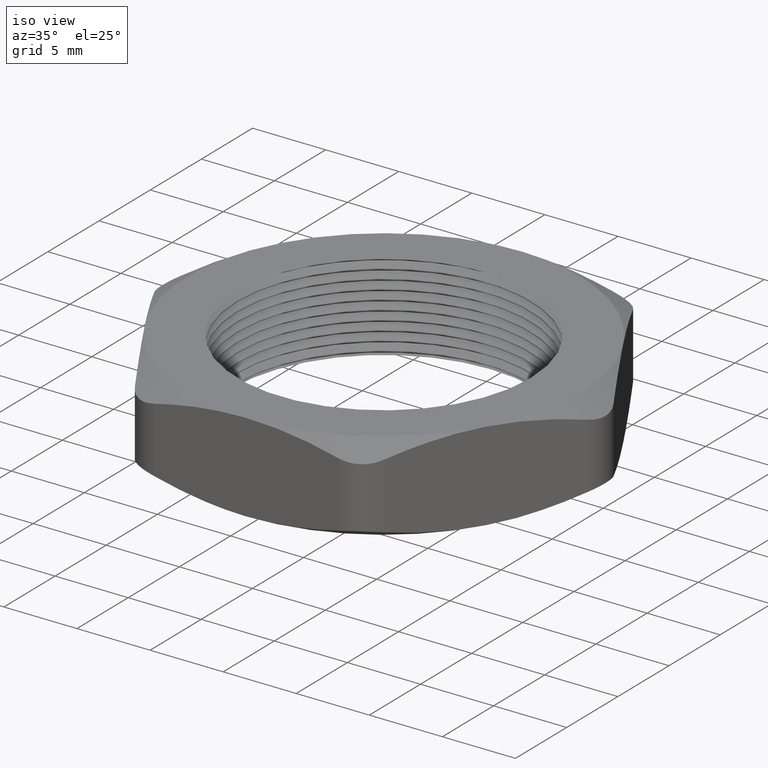
[diagram: clean part render]
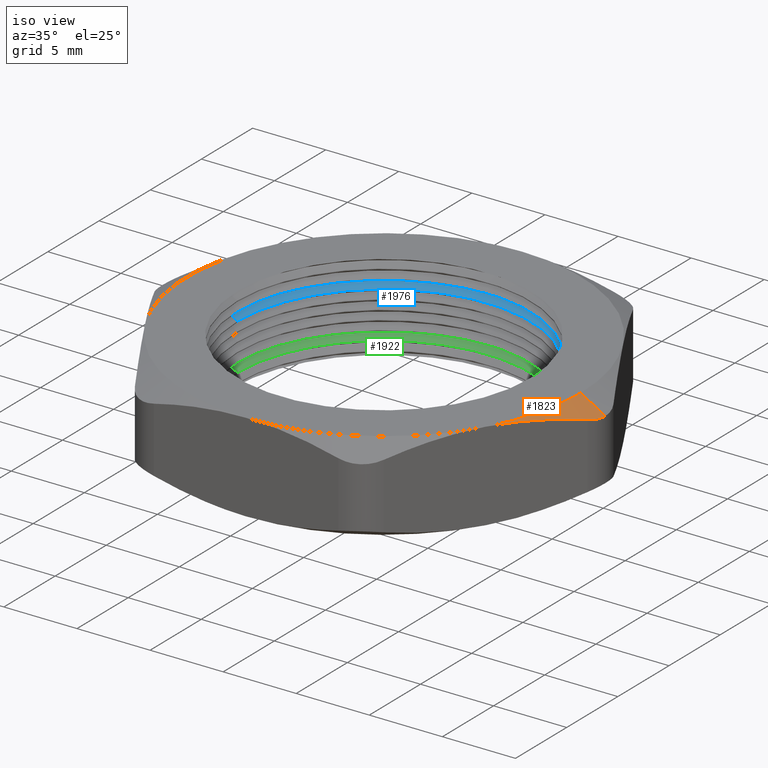
[diagram: same view with three faces highlighted in distinct colors, each labeled with its STEP entity id]
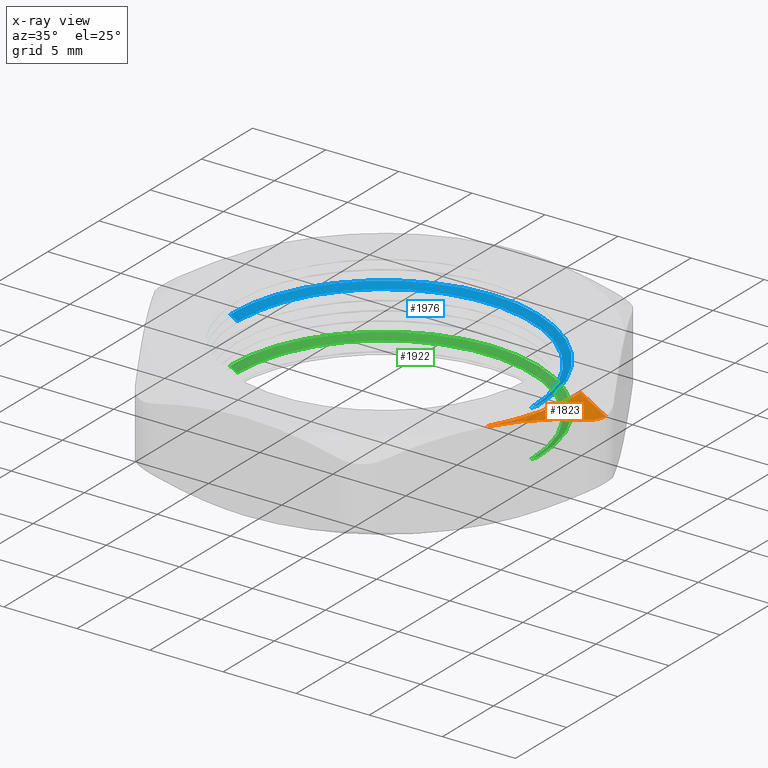
[diagram: x-ray of the same camera — body ghosted, the three highlighted faces saturated]
A machine part, iso view with three faces highlighted in distinct colors.
The next image is the same camera in x-ray (body ghosted, the three faces saturated) — at least one of them is partly hidden behind the body in this view.
Their STEP definitions:

[orange] entity #1823 — the highlighted conical surface has half-angle 60 deg.
#121 = CARTESIAN_POINT ( 'NONE',  ( 0.5965212315030782300, -3.403593173353176800E-025, 0.2015939490848726600 ) ) ;
#122 = DIRECTION ( 'NONE',  ( 0.8660254037844397100, 0.0000000000000000000, -0.4999999999999979500 ) ) ;
#123 = VECTOR ( 'NONE', #122, 39.37007874015748900 ) ;
#124 = CARTESIAN_POINT ( 'NONE',  ( 0.5300000000000001400, 0.0000000000000000000, 0.2399999999999999900 ) ) ;
#125 = LINE ( 'NONE', #124, #123 ) ;
#127 = CARTESIAN_POINT ( 'NONE',  ( 0.5300000000000001400, 0.0000000000000000000, 0.2399999999999999900 ) ) ;
#451 = CARTESIAN_POINT ( 'NONE',  ( 0.5831237718815220900, -0.04999999999999973200, 0.2080936187378568900 ) ) ;
#452 = CARTESIAN_POINT ( 'NONE',  ( 0.5628122693413814000, -0.08518055437758737000, 0.2180423529276612800 ) ) ;
#453 = CARTESIAN_POINT ( 'NONE',  ( 0.5423412265098264100, -0.1206374406457594400, 0.2260647668561308100 ) ) ;
#454 = CARTESIAN_POINT ( 'NONE',  ( 0.5113207380161618500, -0.1743665027923923800, 0.2343080058279308200 ) ) ;
#455 = CARTESIAN_POINT ( 'NONE',  ( 0.5009282709238904700, -0.1923667838121938300, 0.2364242204120070600 ) ) ;
#456 = CARTESIAN_POINT ( 'NONE',  ( 0.4800286126102081300, -0.2285660538723209800, 0.2392714483092691600 ) ) ;
#457 = CARTESIAN_POINT ( 'NONE',  ( 0.4694840780328565800, -0.2468297235024607400, 0.2400000000000003800 ) ) ;
#458 = CARTESIAN_POINT ( 'NONE',  ( 0.4589934640057524700, -0.2649999999999999600, 0.2399999999999999900 ) ) ;
#459 = CARTESIAN_POINT ( 'NONE',  ( 0.4589934640057524700, -0.2649999999999999600, 0.2399999999999999900 ) ) ;
#460 = B_SPLINE_CURVE_WITH_KNOTS ( 'NONE', 3,
 ( #458, #457, #456, #455, #454, #453, #452, #451 ),
 .UNSPECIFIED., .F., .F.,
 ( 4, 2, 2, 4 ),
 ( 0.007864521838742756900, 0.009447047830300869800, 0.01102957382185898100, 0.01419462580497520700 ),
 .UNSPECIFIED. ) ;
#461 = CARTESIAN_POINT ( 'NONE',  ( 0.5831237718815220900, -0.04999999999999973200, 0.2080936187378568900 ) ) ;
#856 = CARTESIAN_POINT ( 'NONE',  ( 0.5874461532471804100, -0.04251341586499040500, 0.2059764822439457400 ) ) ;
#857 = CARTESIAN_POINT ( 'NONE',  ( 0.5831237718815220900, -0.04999999999999973200, 0.2080936187378568900 ) ) ;
#869 = B_SPLINE_CURVE_WITH_KNOTS ( 'NONE', 3,
 ( #857, #856, #904, #903, #902, #901 ),
 .UNSPECIFIED., .F., .F.,
 ( 4, 2, 4 ),
 ( 2.168404344971008900E-019, 0.0006690574479773465400, 0.001338114895954692900 ),
 .UNSPECIFIED. ) ;
#882 = DIRECTION ( 'NONE',  ( 1.000000000000000000, 0.0000000000000000000, 0.0000000000000000000 ) ) ;
#883 = DIRECTION ( 'NONE',  ( 0.0000000000000000000, 0.0000000000000000000, 1.000000000000000000 ) ) ;
#884 = CARTESIAN_POINT ( 'NONE',  ( 0.0000000000000000000, 0.0000000000000000000, 0.2399999999999999900 ) ) ;
#885 = AXIS2_PLACEMENT_3D ( 'NONE', #884, #883, #882 ) ;
#886 = CIRCLE ( 'NONE', #885, 0.5300000000000001400 ) ;
#901 = CARTESIAN_POINT ( 'NONE',  ( 0.5965212315030782300, -3.403593173353176800E-025, 0.2015939490848726600 ) ) ;
#902 = CARTESIAN_POINT ( 'NONE',  ( 0.5965212315030781200, -0.008792523700346100600, 0.2015939490848726600 ) ) ;
#903 = CARTESIAN_POINT ( 'NONE',  ( 0.5953478593261328800, -0.01761277402300891900, 0.2021565181018570600 ) ) ;
#904 = CARTESIAN_POINT ( 'NONE',  ( 0.5907735808882251800, -0.03454572058942138900, 0.2043654439536534400 ) ) ;
#962 = DIRECTION ( 'NONE',  ( 1.000000000000000000, 0.0000000000000000000, 0.0000000000000000000 ) ) ;
#963 = DIRECTION ( 'NONE',  ( 0.0000000000000000000, 0.0000000000000000000, -1.000000000000000000 ) ) ;
#964 = CARTESIAN_POINT ( 'NONE',  ( 0.0000000000000000000, 0.0000000000000000000, 0.2399999999999999900 ) ) ;
#965 = AXIS2_PLACEMENT_3D ( 'NONE', #964, #963, #962 ) ;
#967 = CONICAL_SURFACE ( 'NONE', #965, 0.5300000000000001400, 1.047197551196600100 ) ;
#970 = FACE_OUTER_BOUND ( 'NONE', #1824, .T. ) ;
#1783 = ORIENTED_EDGE ( 'NONE', *, *, #2456, .T. ) ;
#1784 = ORIENTED_EDGE ( 'NONE', *, *, #1785, .T. ) ;
#1785 = EDGE_CURVE ( 'NONE', #2454, #2281, #869, .T. ) ;
#1796 = EDGE_CURVE ( 'NONE', #2457, #2277, #886, .T. ) ;
#1823 = ADVANCED_FACE ( 'NONE', ( #970 ), #967, .T. ) ;
#1824 = EDGE_LOOP ( 'NONE', ( #1825, #1826, #1783, #1784 ) ) ;
#1825 = ORIENTED_EDGE ( 'NONE', *, *, #2280, .F. ) ;
#1826 = ORIENTED_EDGE ( 'NONE', *, *, #1796, .F. ) ;
#2277 = VERTEX_POINT ( 'NONE', #127 ) ;
#2280 = EDGE_CURVE ( 'NONE', #2277, #2281, #125, .T. ) ;
#2281 = VERTEX_POINT ( 'NONE', #121 ) ;
#2454 = VERTEX_POINT ( 'NONE', #461 ) ;
#2456 = EDGE_CURVE ( 'NONE', #2457, #2454, #460, .T. ) ;
#2457 = VERTEX_POINT ( 'NONE', #459 ) ;

[blue] entity #1976 — the highlighted conical surface has half-angle 60 deg.
#166 = DIRECTION ( 'NONE',  ( 1.000000000000000000, 0.0000000000000000000, 0.0000000000000000000 ) ) ;
#167 = DIRECTION ( 'NONE',  ( 0.0000000000000000000, 0.0000000000000000000, 1.000000000000000000 ) ) ;
#168 = AXIS2_PLACEMENT_3D ( 'NONE', #175, #167, #166 ) ;
#169 = CIRCLE ( 'NONE', #168, 0.3950000000000000200 ) ;
#175 = CARTESIAN_POINT ( 'NONE',  ( 0.0000000000000000000, 0.0000000000000000000, 0.1669059892324150900 ) ) ;
#1362 = DIRECTION ( 'NONE',  ( 1.000000000000000000, 0.0000000000000000000, 0.0000000000000000000 ) ) ;
#1363 = DIRECTION ( 'NONE',  ( 0.0000000000000000000, 0.0000000000000000000, 1.000000000000000000 ) ) ;
#1364 = AXIS2_PLACEMENT_3D ( 'NONE', #1367, #1363, #1362 ) ;
#1365 = CONICAL_SURFACE ( 'NONE', #1364, 0.3950000000000000200, 1.047197551196591000 ) ;
#1367 = CARTESIAN_POINT ( 'NONE',  ( 0.0000000000000000000, 0.0000000000000000000, 0.1669059892324150900 ) ) ;
#1368 = DIRECTION ( 'NONE',  ( 1.000000000000000000, 0.0000000000000000000, 0.0000000000000000000 ) ) ;
#1369 = DIRECTION ( 'NONE',  ( 0.0000000000000000000, 0.0000000000000000000, 1.000000000000000000 ) ) ;
#1370 = CARTESIAN_POINT ( 'NONE',  ( 0.0000000000000000000, 0.0000000000000000000, 0.1784529946162077800 ) ) ;
#1371 = AXIS2_PLACEMENT_3D ( 'NONE', #1370, #1369, #1368 ) ;
#1372 = CIRCLE ( 'NONE', #1371, 0.4150000000000000400 ) ;
#1373 = FACE_OUTER_BOUND ( 'NONE', #1909, .T. ) ;
#1511 = DIRECTION ( 'NONE',  ( -0.8660254037844351500, 1.060575238724902700E-016, 0.5000000000000058800 ) ) ;
#1512 = VECTOR ( 'NONE', #1511, 39.37007874015748100 ) ;
#1513 = CARTESIAN_POINT ( 'NONE',  ( -0.3950000000000000200, 4.837354856632045600E-017, 0.1669059892324150900 ) ) ;
#1514 = LINE ( 'NONE', #1513, #1512 ) ;
#1515 = CARTESIAN_POINT ( 'NONE',  ( 0.3950000000000000200, 4.837354856632044300E-017, 0.1669059892324150900 ) ) ;
#1516 = CARTESIAN_POINT ( 'NONE',  ( -0.3950000000000000200, 0.0000000000000000000, 0.1669059892324150900 ) ) ;
#1651 = DIRECTION ( 'NONE',  ( 0.8660254037844351500, 0.0000000000000000000, 0.5000000000000058800 ) ) ;
#1652 = VECTOR ( 'NONE', #1651, 39.37007874015748100 ) ;
#1661 = CARTESIAN_POINT ( 'NONE',  ( 0.3950000000000000200, 0.0000000000000000000, 0.1669059892324150900 ) ) ;
#1662 = LINE ( 'NONE', #1661, #1652 ) ;
#1666 = CARTESIAN_POINT ( 'NONE',  ( -0.4150000000000000400, 0.0000000000000000000, 0.1784529946162077800 ) ) ;
#1667 = CARTESIAN_POINT ( 'NONE',  ( 0.4150000000000000400, 5.082284216461516300E-017, 0.1784529946162077800 ) ) ;
#1866 = ORIENTED_EDGE ( 'NONE', *, *, #1974, .T. ) ;
#1909 = EDGE_LOOP ( 'NONE', ( #1977, #1947, #1979, #1866 ) ) ;
#1947 = ORIENTED_EDGE ( 'NONE', *, *, #2319, .F. ) ;
#1974 = EDGE_CURVE ( 'NONE', #2175, #2172, #1372, .T. ) ;
#1976 = ADVANCED_FACE ( 'NONE', ( #1373 ), #1365, .F. ) ;
#1977 = ORIENTED_EDGE ( 'NONE', *, *, #2171, .F. ) ;
#1979 = ORIENTED_EDGE ( 'NONE', *, *, #2183, .T. ) ;
#2168 = VERTEX_POINT ( 'NONE', #1516 ) ;
#2169 = VERTEX_POINT ( 'NONE', #1515 ) ;
#2171 = EDGE_CURVE ( 'NONE', #2168, #2172, #1514, .T. ) ;
#2172 = VERTEX_POINT ( 'NONE', #1666 ) ;
#2175 = VERTEX_POINT ( 'NONE', #1667 ) ;
#2183 = EDGE_CURVE ( 'NONE', #2169, #2175, #1662, .T. ) ;
#2319 = EDGE_CURVE ( 'NONE', #2169, #2168, #169, .T. ) ;

[green] entity #1922 — the highlighted conical surface has half-angle 60 deg.
#244 = DIRECTION ( 'NONE',  ( 1.000000000000000000, 0.0000000000000000000, 0.0000000000000000000 ) ) ;
#245 = DIRECTION ( 'NONE',  ( 0.0000000000000000000, 0.0000000000000000000, 1.000000000000000000 ) ) ;
#246 = CARTESIAN_POINT ( 'NONE',  ( 0.0000000000000000000, 0.0000000000000000000, 0.04190598923241509200 ) ) ;
#247 = AXIS2_PLACEMENT_3D ( 'NONE', #246, #245, #244 ) ;
#248 = CIRCLE ( 'NONE', #247, 0.3950000000000000200 ) ;
#1064 = DIRECTION ( 'NONE',  ( 1.000000000000000000, 0.0000000000000000000, 0.0000000000000000000 ) ) ;
#1065 = DIRECTION ( 'NONE',  ( 0.0000000000000000000, 0.0000000000000000000, 1.000000000000000000 ) ) ;
#1066 = CARTESIAN_POINT ( 'NONE',  ( 0.0000000000000000000, 0.0000000000000000000, 0.04190598923241509200 ) ) ;
#1067 = AXIS2_PLACEMENT_3D ( 'NONE', #1066, #1065, #1064 ) ;
#1069 = CONICAL_SURFACE ( 'NONE', #1067, 0.3950000000000000200, 1.047197551196591000 ) ;
#1070 = FACE_OUTER_BOUND ( 'NONE', #1926, .T. ) ;
#1071 = DIRECTION ( 'NONE',  ( 1.000000000000000000, 0.0000000000000000000, 0.0000000000000000000 ) ) ;
#1072 = DIRECTION ( 'NONE',  ( 0.0000000000000000000, 0.0000000000000000000, 1.000000000000000000 ) ) ;
#1188 = CARTESIAN_POINT ( 'NONE',  ( 0.0000000000000000000, 0.0000000000000000000, 0.05345299461620777600 ) ) ;
#1189 = AXIS2_PLACEMENT_3D ( 'NONE', #1188, #1072, #1071 ) ;
#1194 = CIRCLE ( 'NONE', #1189, 0.4150000000000000400 ) ;
#1291 = CARTESIAN_POINT ( 'NONE',  ( 0.4150000000000000400, 5.082284216461516300E-017, 0.05345299461620777600 ) ) ;
#1301 = DIRECTION ( 'NONE',  ( 0.8660254037844351500, 0.0000000000000000000, 0.5000000000000058800 ) ) ;
#1302 = VECTOR ( 'NONE', #1301, 39.37007874015748100 ) ;
#1303 = CARTESIAN_POINT ( 'NONE',  ( 0.3950000000000000200, 0.0000000000000000000, 0.04190598923241509200 ) ) ;
#1304 = LINE ( 'NONE', #1303, #1302 ) ;
#1509 = CARTESIAN_POINT ( 'NONE',  ( -0.4150000000000000400, 0.0000000000000000000, 0.05345299461620777600 ) ) ;
#1599 = CARTESIAN_POINT ( 'NONE',  ( -0.3950000000000000200, 0.0000000000000000000, 0.04190598923241509200 ) ) ;
#1621 = CARTESIAN_POINT ( 'NONE',  ( 0.3950000000000000200, 4.837354856632044300E-017, 0.04190598923241509200 ) ) ;
#1888 = ORIENTED_EDGE ( 'NONE', *, *, #2224, .F. ) ;
#1921 = EDGE_CURVE ( 'NONE', #1949, #2090, #1194, .T. ) ;
#1922 = ADVANCED_FACE ( 'NONE', ( #1070 ), #1069, .F. ) ;
#1926 = EDGE_LOOP ( 'NONE', ( #1888, #1933, #1934, #1935 ) ) ;
#1933 = ORIENTED_EDGE ( 'NONE', *, *, #2344, .F. ) ;
#1934 = ORIENTED_EDGE ( 'NONE', *, *, #2023, .T. ) ;
#1935 = ORIENTED_EDGE ( 'NONE', *, *, #1921, .T. ) ;
#1949 = VERTEX_POINT ( 'NONE', #1291 ) ;
#2023 = EDGE_CURVE ( 'NONE', #2075, #1949, #1304, .T. ) ;
#2075 = VERTEX_POINT ( 'NONE', #1621 ) ;
#2090 = VERTEX_POINT ( 'NONE', #1509 ) ;
#2110 = VERTEX_POINT ( 'NONE', #1599 ) ;
#2224 = EDGE_CURVE ( 'NONE', #2110, #2090, #2518, .T. ) ;
#2344 = EDGE_CURVE ( 'NONE', #2075, #2110, #248, .T. ) ;
#2515 = DIRECTION ( 'NONE',  ( -0.8660254037844351500, 1.060575238724902700E-016, 0.5000000000000058800 ) ) ;
#2516 = VECTOR ( 'NONE', #2515, 39.37007874015748100 ) ;
#2517 = CARTESIAN_POINT ( 'NONE',  ( -0.3950000000000000200, 4.837354856632045600E-017, 0.04190598923241509200 ) ) ;
#2518 = LINE ( 'NONE', #2517, #2516 ) ;